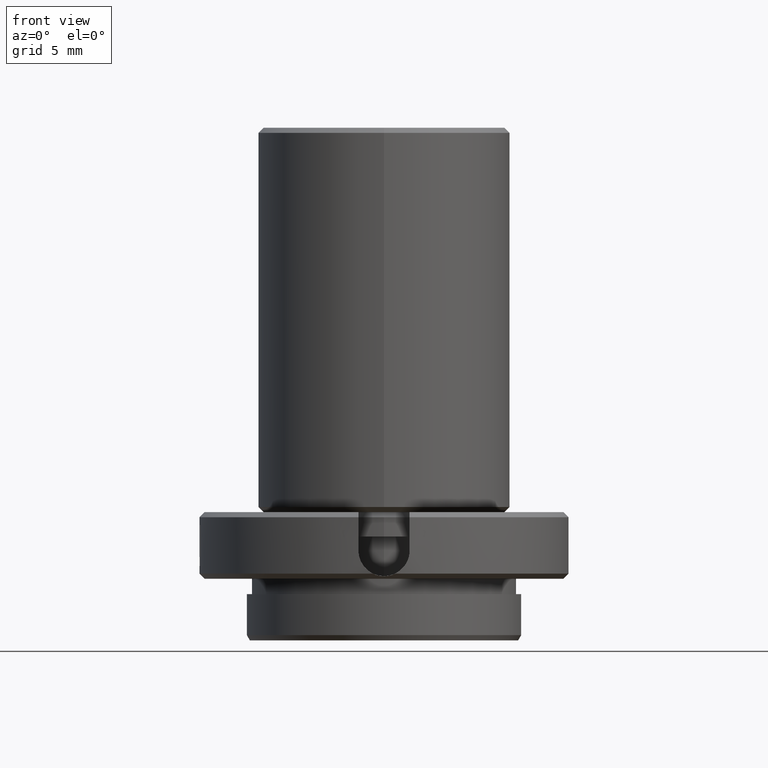
[diagram: clean part render]
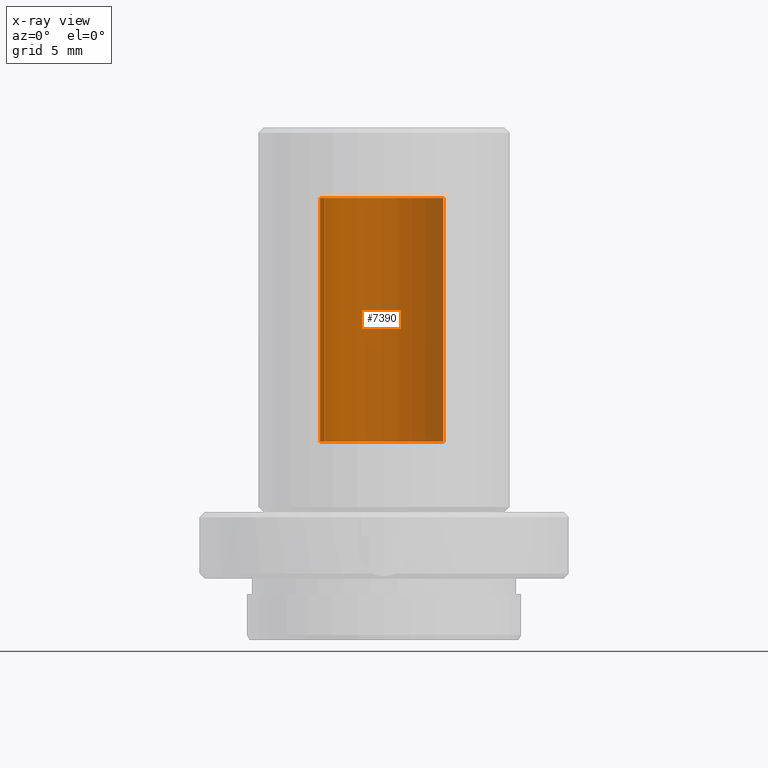
[diagram: x-ray — body ghosted, one internal face saturated and labeled with its STEP entity id]
A machine part, front view, then the same camera in x-ray: the body is ghosted and one INTERNAL B-rep face — a face not visible from any outside direction — is saturated and labeled: STEP entity #7390.
In plain terms, the highlighted cylindrical surface (partial cylindrical patch) has radius 3.175 mm, axis along (0, 0, 1).
Its self-contained STEP definition (entity closure, byte-faithful):
#1493 = EDGE_CURVE ( 'NONE', #25676, #4598, #5674, .T. ) ;
#1722 = EDGE_CURVE ( 'NONE', #16651, #3515, #23997, .T. ) ;
#2369 = DIRECTION ( 'NONE',  ( 4.726704790295739583E-49, 4.930380657631323784E-32, 1.000000000000000000 ) ) ;
#3515 = VERTEX_POINT ( 'NONE', #19419 ) ;
#4598 = VERTEX_POINT ( 'NONE', #13005 ) ;
#5674 = CIRCLE ( 'NONE', #11734, 0.1249999999999999722 ) ;
#6092 = DIRECTION ( 'NONE',  ( 4.726704790295739583E-49, 4.930380657631323784E-32, 1.000000000000000000 ) ) ;
#6242 = LINE ( 'NONE', #8297, #21616 ) ;
#7390 = ADVANCED_FACE ( 'NONE', ( #31356 ), #19005, .T. ) ;
#8133 = AXIS2_PLACEMENT_3D ( 'NONE', #35603, #12714, #12593 ) ;
#8297 = CARTESIAN_POINT ( 'NONE',  ( 0.1154660026683834578, 0.04788112600790472850, -0.2149999999999998301 ) ) ;
#10848 = LINE ( 'NONE', #24200, #34806 ) ;
#11734 = AXIS2_PLACEMENT_3D ( 'NONE', #13001, #18939, #27804 ) ;
#12188 = CARTESIAN_POINT ( 'NONE',  ( 0.1154660026683834578, 0.04788112600790472850, -0.2024999999999998190 ) ) ;
#12593 = DIRECTION ( 'NONE',  ( 0.9237280213470682178, 0.3830490080632376615, 0.000000000000000000 ) ) ;
#12714 = DIRECTION ( 'NONE',  ( 4.726704790295739583E-49, 4.930380657631323784E-32, 1.000000000000000000 ) ) ;
#13001 = CARTESIAN_POINT ( 'NONE',  ( -3.414809992080329023E-17, 3.414809992080333337E-17, 0.2725000000000001865 ) ) ;
#13005 = CARTESIAN_POINT ( 'NONE',  ( 0.1154660026683834578, 0.04788112600790472850, 0.2725000000000001865 ) ) ;
#16651 = VERTEX_POINT ( 'NONE', #12188 ) ;
#18939 = DIRECTION ( 'NONE',  ( -4.726704790295739583E-49, -4.930380657631323784E-32, -1.000000000000000000 ) ) ;
#19000 = ORIENTED_EDGE ( 'NONE', *, *, #19727, .T. ) ;
#19005 = CYLINDRICAL_SURFACE ( 'NONE', #30390, 0.1249999999999999722 ) ;
#19419 = CARTESIAN_POINT ( 'NONE',  ( -0.1154660026683835272, -0.04788112600790465218, -0.2024999999999998190 ) ) ;
#19727 = EDGE_CURVE ( 'NONE', #3515, #25676, #10848, .T. ) ;
#21616 = VECTOR ( 'NONE', #2369, 39.37007874015748143 ) ;
#23973 = DIRECTION ( 'NONE',  ( 4.726704790295739583E-49, 4.930380657631323784E-32, 1.000000000000000000 ) ) ;
#23997 = CIRCLE ( 'NONE', #8133, 0.1249999999999999722 ) ;
#24200 = CARTESIAN_POINT ( 'NONE',  ( -0.1154660026683835272, -0.04788112600790465218, -0.2149999999999998301 ) ) ;
#25676 = VERTEX_POINT ( 'NONE', #27775 ) ;
#27775 = CARTESIAN_POINT ( 'NONE',  ( -0.1154660026683835272, -0.04788112600790465218, 0.2725000000000001865 ) ) ;
#27804 = DIRECTION ( 'NONE',  ( 0.9237280213470682178, 0.3830490080632376615, 0.000000000000000000 ) ) ;
#28669 = EDGE_CURVE ( 'NONE', #16651, #4598, #6242, .T. ) ;
#28744 = CARTESIAN_POINT ( 'NONE',  ( -3.414809992080329023E-17, 3.414809992080330256E-17, -0.2149999999999998301 ) ) ;
#30390 = AXIS2_PLACEMENT_3D ( 'NONE', #28744, #6092, #34530 ) ;
#30635 = ORIENTED_EDGE ( 'NONE', *, *, #1493, .T. ) ;
#31356 = FACE_OUTER_BOUND ( 'NONE', #37475, .T. ) ;
#34324 = ORIENTED_EDGE ( 'NONE', *, *, #1722, .T. ) ;
#34530 = DIRECTION ( 'NONE',  ( 0.9237280213470682178, 0.3830490080632376615, 0.000000000000000000 ) ) ;
#34806 = VECTOR ( 'NONE', #23973, 39.37007874015748143 ) ;
#35603 = CARTESIAN_POINT ( 'NONE',  ( -3.414809992080329023E-17, 3.414809992080330256E-17, -0.2024999999999998190 ) ) ;
#35970 = ORIENTED_EDGE ( 'NONE', *, *, #28669, .F. ) ;
#37475 = EDGE_LOOP ( 'NONE', ( #34324, #19000, #30635, #35970 ) ) ;